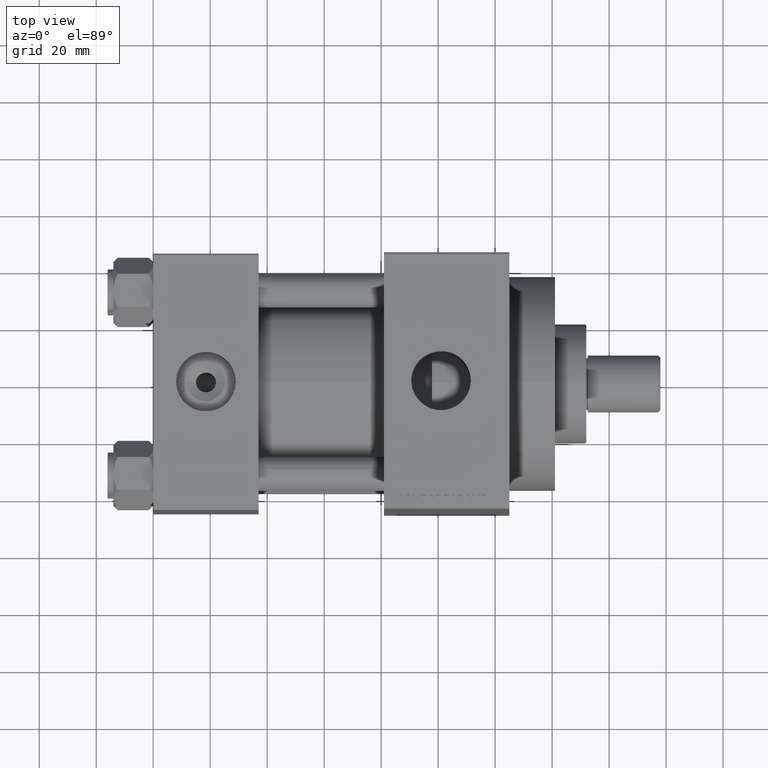
[diagram: clean part render]
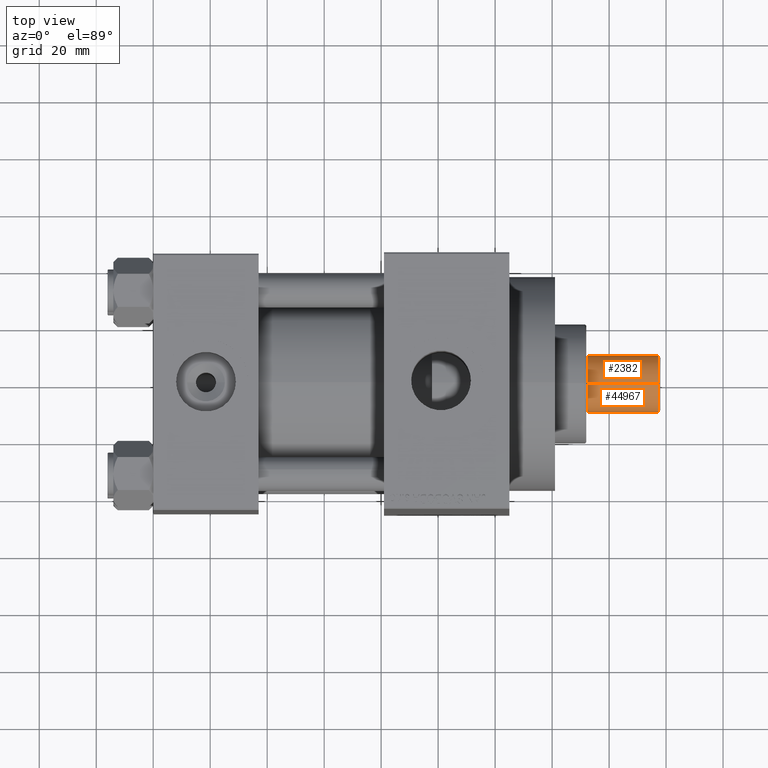
[diagram: same view with one multi-face feature highlighted, each face labeled with its STEP entity id]
A machine part, top view. The highlighted faces form ONE feature: a constant-radius fillet chain: 2 tangent blend faces with common blend radius 10 mm. The faces share edges in the B-rep.
Their STEP definitions:
[1] entity #44967 (Cylinder):
#319 = EDGE_CURVE ( 'NONE', #38230, #389, #12715, .T. ) ;
#389 = VERTEX_POINT ( 'NONE', #42103 ) ;
#3079 = DIRECTION ( 'NONE',  ( 1.000000000000000000, 0.000000000000000000, 0.000000000000000000 ) ) ;
#3717 = VERTEX_POINT ( 'NONE', #27185 ) ;
#8566 = CYLINDRICAL_SURFACE ( 'NONE', #22302, 10.00000000000000000 ) ;
#10621 = VECTOR ( 'NONE', #38243, 1000.000000000000000 ) ;
#11085 = EDGE_CURVE ( 'NONE', #389, #26460, #30856, .T. ) ;
#11143 = VECTOR ( 'NONE', #30398, 1000.000000000000000 ) ;
#11300 = ORIENTED_EDGE ( 'NONE', *, *, #23088, .F. ) ;
#12023 = CIRCLE ( 'NONE', #25896, 10.00000000000000000 ) ;
#12715 = LINE ( 'NONE', #31243, #10621 ) ;
#12900 = DIRECTION ( 'NONE',  ( 1.000000000000000000, 0.000000000000000000, 0.000000000000000000 ) ) ;
#13055 = ORIENTED_EDGE ( 'NONE', *, *, #33655, .F. ) ;
#15478 = CARTESIAN_POINT ( 'NONE',  ( 10.00000000000000000, 1.224646799147353256E-15, 25.50000000000000000 ) ) ;
#22302 = AXIS2_PLACEMENT_3D ( 'NONE', #37942, #23499, #23736 ) ;
#23088 = EDGE_CURVE ( 'NONE', #3717, #26460, #27047, .T. ) ;
#23202 = AXIS2_PLACEMENT_3D ( 'NONE', #29787, #44485, #12900 ) ;
#23499 = DIRECTION ( 'NONE',  ( -0.000000000000000000, -0.000000000000000000, -1.000000000000000000 ) ) ;
#23736 = DIRECTION ( 'NONE',  ( -1.000000000000000000, 0.000000000000000000, 0.000000000000000000 ) ) ;
#25896 = AXIS2_PLACEMENT_3D ( 'NONE', #36067, #29346, #3079 ) ;
#26131 = CARTESIAN_POINT ( 'NONE',  ( -10.00000000000000000, 0.000000000000000000, 25.50000000000000000 ) ) ;
#26460 = VERTEX_POINT ( 'NONE', #30635 ) ;
#27047 = LINE ( 'NONE', #15478, #11143 ) ;
#27185 = CARTESIAN_POINT ( 'NONE',  ( 10.00000000000000000, 1.224646799147353256E-15, 25.50000000000000000 ) ) ;
#29346 = DIRECTION ( 'NONE',  ( 0.000000000000000000, 0.000000000000000000, 1.000000000000000000 ) ) ;
#29787 = CARTESIAN_POINT ( 'NONE',  ( 0.000000000000000000, 0.000000000000000000, 0.8000000000000055955 ) ) ;
#30051 = ORIENTED_EDGE ( 'NONE', *, *, #11085, .T. ) ;
#30398 = DIRECTION ( 'NONE',  ( -0.000000000000000000, -0.000000000000000000, -1.000000000000000000 ) ) ;
#30635 = CARTESIAN_POINT ( 'NONE',  ( 10.00000000000000000, 1.224646799147353256E-15, 0.8000000000000055955 ) ) ;
#30856 = CIRCLE ( 'NONE', #23202, 10.00000000000000000 ) ;
#31243 = CARTESIAN_POINT ( 'NONE',  ( -10.00000000000000000, 0.000000000000000000, 25.50000000000000000 ) ) ;
#33655 = EDGE_CURVE ( 'NONE', #38230, #3717, #12023, .T. ) ;
#36067 = CARTESIAN_POINT ( 'NONE',  ( 0.000000000000000000, 0.000000000000000000, 25.50000000000000000 ) ) ;
#37942 = CARTESIAN_POINT ( 'NONE',  ( 0.000000000000000000, 0.000000000000000000, 25.50000000000000000 ) ) ;
#38230 = VERTEX_POINT ( 'NONE', #26131 ) ;
#38243 = DIRECTION ( 'NONE',  ( -0.000000000000000000, -0.000000000000000000, -1.000000000000000000 ) ) ;
#42103 = CARTESIAN_POINT ( 'NONE',  ( -10.00000000000000000, 0.000000000000000000, 0.8000000000000055955 ) ) ;
#42448 = EDGE_LOOP ( 'NONE', ( #11300, #13055, #45773, #30051 ) ) ;
#44485 = DIRECTION ( 'NONE',  ( -0.000000000000000000, -0.000000000000000000, 1.000000000000000000 ) ) ;
#44967 = ADVANCED_FACE ( 'NONE', ( #46374 ), #8566, .T. ) ;
#45773 = ORIENTED_EDGE ( 'NONE', *, *, #319, .T. ) ;
#46374 = FACE_OUTER_BOUND ( 'NONE', #42448, .T. ) ;
[2] entity #2382 (Cylinder):
#319 = EDGE_CURVE ( 'NONE', #38230, #389, #12715, .T. ) ;
#389 = VERTEX_POINT ( 'NONE', #42103 ) ;
#860 = DIRECTION ( 'NONE',  ( 1.000000000000000000, 0.000000000000000000, 0.000000000000000000 ) ) ;
#1511 = ORIENTED_EDGE ( 'NONE', *, *, #23088, .T. ) ;
#2382 = ADVANCED_FACE ( 'NONE', ( #23103 ), #31028, .T. ) ;
#3717 = VERTEX_POINT ( 'NONE', #27185 ) ;
#9278 = ORIENTED_EDGE ( 'NONE', *, *, #319, .F. ) ;
#10621 = VECTOR ( 'NONE', #38243, 1000.000000000000000 ) ;
#11143 = VECTOR ( 'NONE', #30398, 1000.000000000000000 ) ;
#12715 = LINE ( 'NONE', #31243, #10621 ) ;
#15478 = CARTESIAN_POINT ( 'NONE',  ( 10.00000000000000000, 1.224646799147353256E-15, 25.50000000000000000 ) ) ;
#15868 = DIRECTION ( 'NONE',  ( -0.000000000000000000, -0.000000000000000000, -1.000000000000000000 ) ) ;
#16026 = DIRECTION ( 'NONE',  ( -0.000000000000000000, -0.000000000000000000, 1.000000000000000000 ) ) ;
#18564 = ORIENTED_EDGE ( 'NONE', *, *, #24137, .F. ) ;
#19718 = DIRECTION ( 'NONE',  ( -1.000000000000000000, 0.000000000000000000, 0.000000000000000000 ) ) ;
#20718 = AXIS2_PLACEMENT_3D ( 'NONE', #23341, #15868, #19718 ) ;
#21065 = AXIS2_PLACEMENT_3D ( 'NONE', #29428, #22433, #47269 ) ;
#22433 = DIRECTION ( 'NONE',  ( 0.000000000000000000, 0.000000000000000000, 1.000000000000000000 ) ) ;
#23088 = EDGE_CURVE ( 'NONE', #3717, #26460, #27047, .T. ) ;
#23103 = FACE_OUTER_BOUND ( 'NONE', #45000, .T. ) ;
#23341 = CARTESIAN_POINT ( 'NONE',  ( 0.000000000000000000, 0.000000000000000000, 25.50000000000000000 ) ) ;
#24137 = EDGE_CURVE ( 'NONE', #3717, #38230, #41056, .T. ) ;
#26131 = CARTESIAN_POINT ( 'NONE',  ( -10.00000000000000000, 0.000000000000000000, 25.50000000000000000 ) ) ;
#26460 = VERTEX_POINT ( 'NONE', #30635 ) ;
#27047 = LINE ( 'NONE', #15478, #11143 ) ;
#27185 = CARTESIAN_POINT ( 'NONE',  ( 10.00000000000000000, 1.224646799147353256E-15, 25.50000000000000000 ) ) ;
#29428 = CARTESIAN_POINT ( 'NONE',  ( 0.000000000000000000, 0.000000000000000000, 25.50000000000000000 ) ) ;
#30398 = DIRECTION ( 'NONE',  ( -0.000000000000000000, -0.000000000000000000, -1.000000000000000000 ) ) ;
#30635 = CARTESIAN_POINT ( 'NONE',  ( 10.00000000000000000, 1.224646799147353256E-15, 0.8000000000000055955 ) ) ;
#31028 = CYLINDRICAL_SURFACE ( 'NONE', #20718, 10.00000000000000000 ) ;
#31243 = CARTESIAN_POINT ( 'NONE',  ( -10.00000000000000000, 0.000000000000000000, 25.50000000000000000 ) ) ;
#35737 = ORIENTED_EDGE ( 'NONE', *, *, #43568, .T. ) ;
#37759 = CIRCLE ( 'NONE', #46233, 10.00000000000000000 ) ;
#38230 = VERTEX_POINT ( 'NONE', #26131 ) ;
#38243 = DIRECTION ( 'NONE',  ( -0.000000000000000000, -0.000000000000000000, -1.000000000000000000 ) ) ;
#41056 = CIRCLE ( 'NONE', #21065, 10.00000000000000000 ) ;
#42103 = CARTESIAN_POINT ( 'NONE',  ( -10.00000000000000000, 0.000000000000000000, 0.8000000000000055955 ) ) ;
#43568 = EDGE_CURVE ( 'NONE', #26460, #389, #37759, .T. ) ;
#45000 = EDGE_LOOP ( 'NONE', ( #18564, #1511, #35737, #9278 ) ) ;
#45428 = CARTESIAN_POINT ( 'NONE',  ( 0.000000000000000000, 0.000000000000000000, 0.8000000000000055955 ) ) ;
#46233 = AXIS2_PLACEMENT_3D ( 'NONE', #45428, #16026, #860 ) ;
#47269 = DIRECTION ( 'NONE',  ( 1.000000000000000000, 0.000000000000000000, 0.000000000000000000 ) ) ;